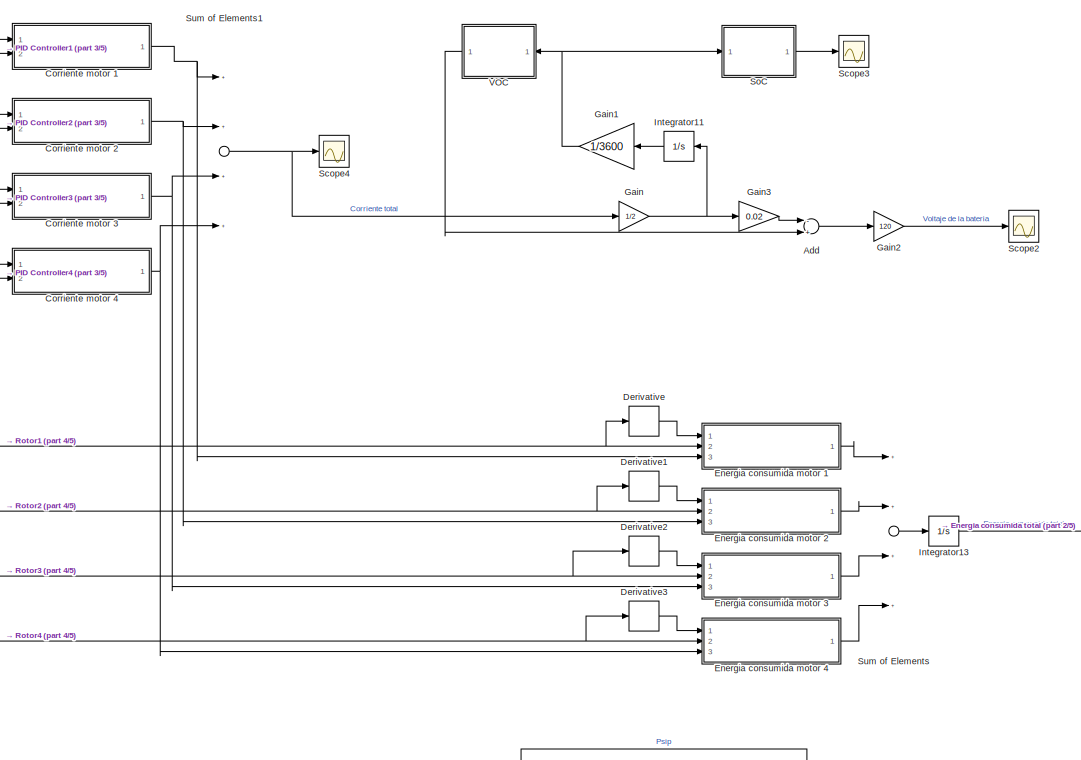
[diagram: root canvas - part 1/5, top center region]
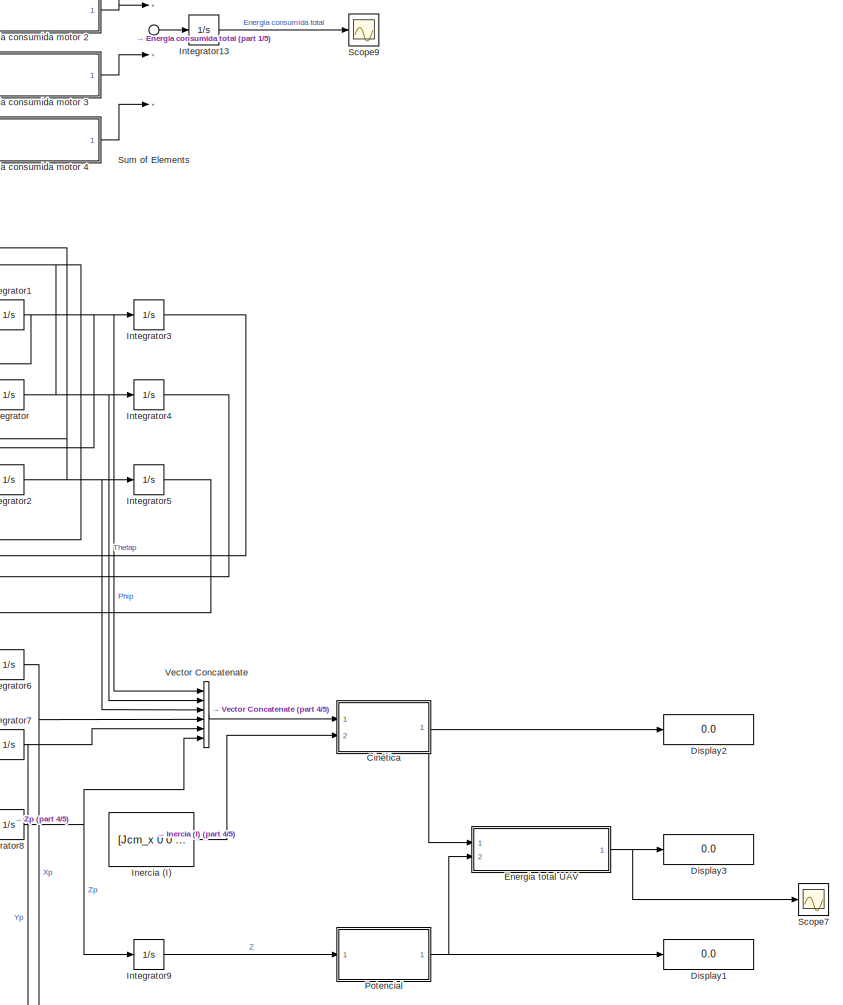
[diagram: root canvas - part 2/5, middle right region]
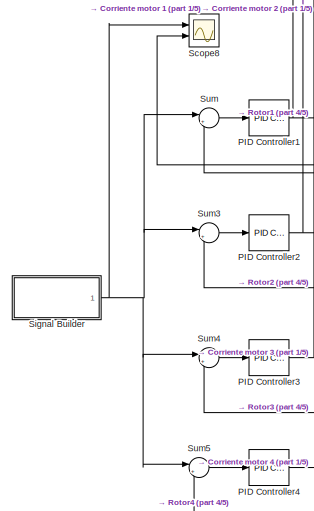
[diagram: root canvas - part 3/5, middle left region]
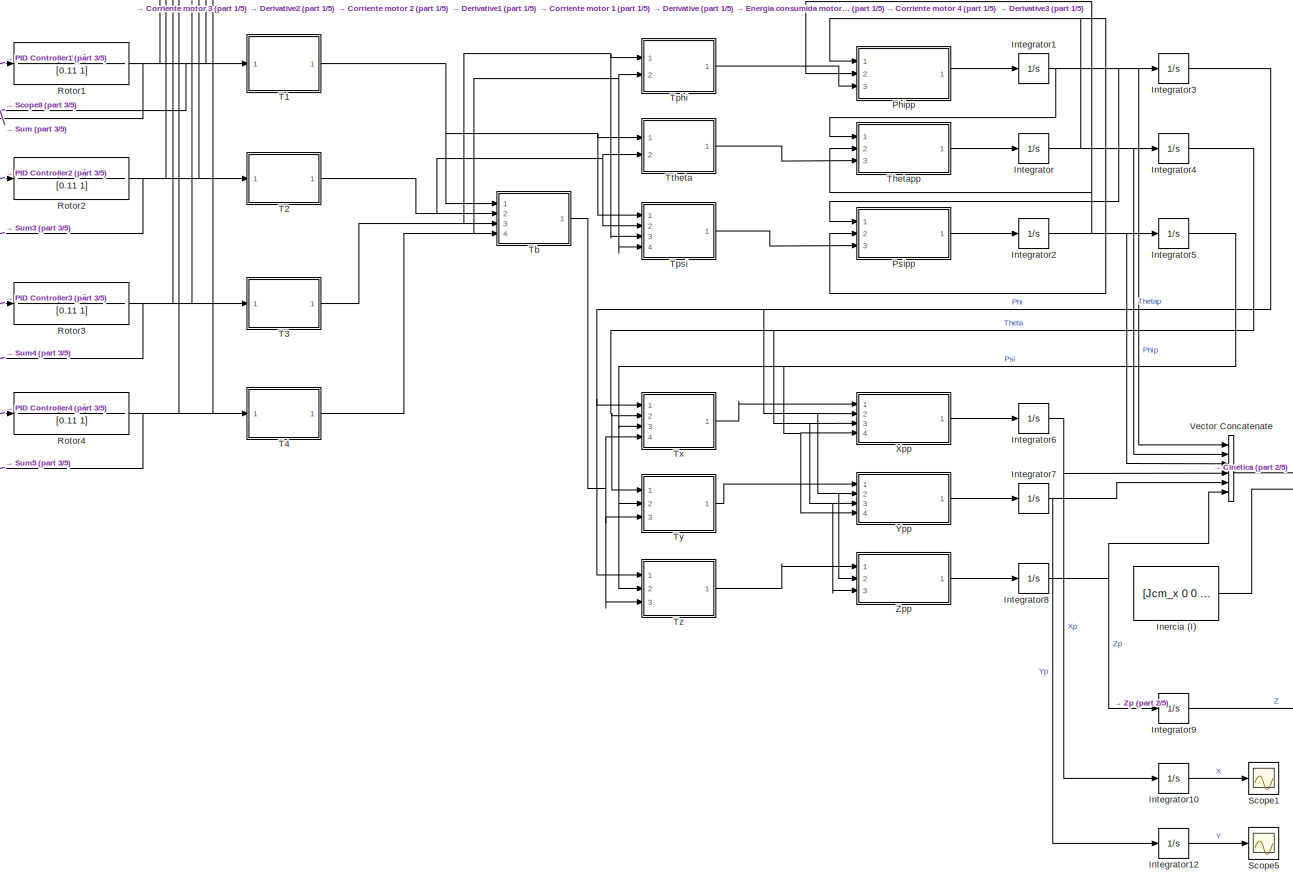
[diagram: root canvas - part 4/5, central region]
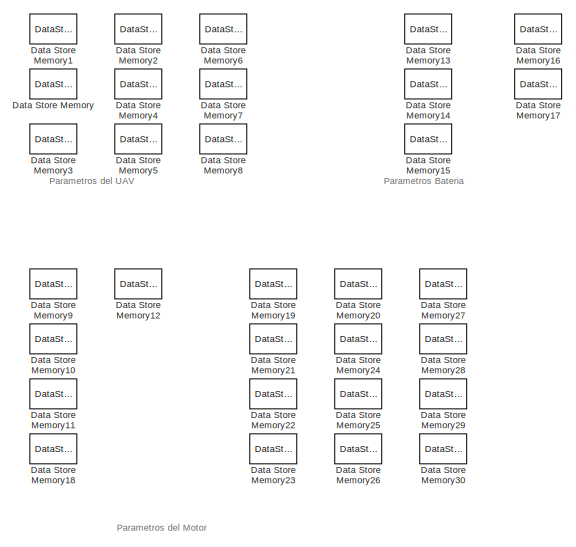
[diagram: root canvas - part 5/5, bottom left region]
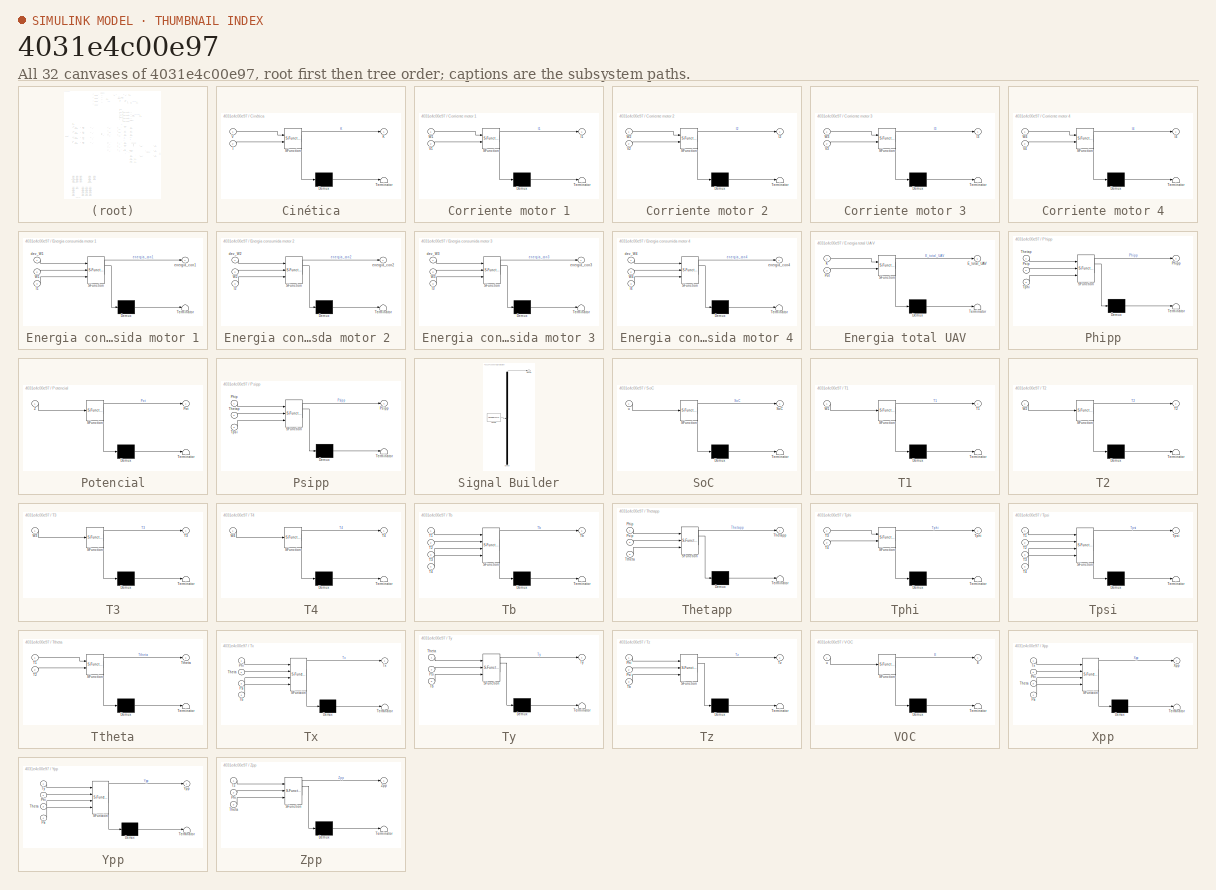
[diagram: thumbnail index - all 32 canvases of the model, root first then tree order]
MODEL slx_4031e4c00e97
KIND model
CONFIG AbsTol = auto
CONFIG EnableMultiTasking = off
CONFIG FixedStep = 1/10000
CONFIG MaxStep = auto
CONFIG MinStep = auto
CONFIG RelTol = 1e-3
CONFIG SampleTimeConstraint = Unconstrained
CONFIG Solver = FixedStepAuto
CONFIG SolverName = FixedStepAuto
CONFIG StartTime = 0.0
CONFIG StopTime = 6
BLOCK [Sum] Add
  InputSameDT = off
  Inputs = -+
  OutDataTypeStr = Inherit: Inherit via internal rule
  Ports = [2, 1]
  SaturateOnIntegerOverflow = off
BLOCK [SubSystem] Cinética
  ErrorFcn = Stateflow.Translate.translate
  PermitHierarchicalResolution = ExplicitOnly
  Ports = [2, 1]
  RequestExecContextInheritance = off
  SFBlockType = MATLAB Function
  TreatAsAtomicUnit = on
  Variant = off
BLOCK [Demux] Cinética/ Demux 
  Outputs = 1
  Ports = [1, 1]
BLOCK [S-Function] Cinética/ SFunction 
  EnableBusSupport = on
  FunctionName = sf_sfun
  PortCounts = [2 2]
  Ports = [2, 2]
  SFcnIsStateOwnerBlock = off
  SFunctionDeploymentMode = off
  Tag = Stateflow S-Function UAV_corregido 18
BLOCK [Terminator] Cinética/ Terminator 
BLOCK [Inport] Cinética/I
  IconDisplay = Port number
  Port = 2
BLOCK [Outport] Cinética/K
  IconDisplay = Port number
BLOCK [Inport] Cinética/V
  IconDisplay = Port number
BLOCK [SubSystem] Corriente motor 1
  ErrorFcn = Stateflow.Translate.translate
  PermitHierarchicalResolution = ExplicitOnly
  Ports = [2, 1]
  RequestExecContextInheritance = off
  SFBlockType = MATLAB Function
  TreatAsAtomicUnit = on
  Variant = off
BLOCK [Demux] Corriente motor 1/ Demux 
  Outputs = 1
  Ports = [1, 1]
BLOCK [S-Function] Corriente motor 1/ SFunction 
  EnableBusSupport = on
  FunctionName = sf_sfun
  PortCounts = [2 2]
  Ports = [2, 2]
  SFcnIsStateOwnerBlock = off
  SFunctionDeploymentMode = off
  Tag = Stateflow S-Function UAV_corregido 23
BLOCK [Terminator] Corriente motor 1/ Terminator 
BLOCK [Outport] Corriente motor 1/I1
  IconDisplay = Port number
BLOCK [Inport] Corriente motor 1/V1
  IconDisplay = Port number
  Port = 2
BLOCK [Inport] Corriente motor 1/W1
  IconDisplay = Port number
BLOCK [SubSystem] Corriente motor 2
  ErrorFcn = Stateflow.Translate.translate
  PermitHierarchicalResolution = ExplicitOnly
  Ports = [2, 1]
  RequestExecContextInheritance = off
  SFBlockType = MATLAB Function
  TreatAsAtomicUnit = on
  Variant = off
BLOCK [Demux] Corriente motor 2/ Demux 
  Outputs = 1
  Ports = [1, 1]
BLOCK [S-Function] Corriente motor 2/ SFunction 
  EnableBusSupport = on
  FunctionName = sf_sfun
  PortCounts = [2 2]
  Ports = [2, 2]
  SFcnIsStateOwnerBlock = off
  SFunctionDeploymentMode = off
  Tag = Stateflow S-Function UAV_corregido 24
BLOCK [Terminator] Corriente motor 2/ Terminator 
BLOCK [Outport] Corriente motor 2/I2
  IconDisplay = Port number
BLOCK [Inport] Corriente motor 2/V2
  IconDisplay = Port number
  Port = 2
BLOCK [Inport] Corriente motor 2/W2
  IconDisplay = Port number
BLOCK [SubSystem] Corriente motor 3
  ErrorFcn = Stateflow.Translate.translate
  PermitHierarchicalResolution = ExplicitOnly
  Ports = [2, 1]
  RequestExecContextInheritance = off
  SFBlockType = MATLAB Function
  TreatAsAtomicUnit = on
  Variant = off
BLOCK [Demux] Corriente motor 3/ Demux 
  Outputs = 1
  Ports = [1, 1]
BLOCK [S-Function] Corriente motor 3/ SFunction 
  EnableBusSupport = on
  FunctionName = sf_sfun
  PortCounts = [2 2]
  Ports = [2, 2]
  SFcnIsStateOwnerBlock = off
  SFunctionDeploymentMode = off
  Tag = Stateflow S-Function UAV_corregido 25
BLOCK [Terminator] Corriente motor 3/ Terminator 
BLOCK [Outport] Corriente motor 3/I3
  IconDisplay = Port number
BLOCK [Inport] Corriente motor 3/V3
  IconDisplay = Port number
  Port = 2
BLOCK [Inport] Corriente motor 3/W3
  IconDisplay = Port number
BLOCK [SubSystem] Corriente motor 4
  ErrorFcn = Stateflow.Translate.translate
  PermitHierarchicalResolution = ExplicitOnly
  Ports = [2, 1]
  RequestExecContextInheritance = off
  SFBlockType = MATLAB Function
  TreatAsAtomicUnit = on
  Variant = off
BLOCK [Demux] Corriente motor 4/ Demux 
  Outputs = 1
  Ports = [1, 1]
BLOCK [S-Function] Corriente motor 4/ SFunction 
  EnableBusSupport = on
  FunctionName = sf_sfun
  PortCounts = [2 2]
  Ports = [2, 2]
  SFcnIsStateOwnerBlock = off
  SFunctionDeploymentMode = off
  Tag = Stateflow S-Function UAV_corregido 26
BLOCK [Terminator] Corriente motor 4/ Terminator 
BLOCK [Outport] Corriente motor 4/I4
  IconDisplay = Port number
BLOCK [Inport] Corriente motor 4/V4
  IconDisplay = Port number
  Port = 2
BLOCK [Inport] Corriente motor 4/W4
  IconDisplay = Port number
BLOCK [DataStoreMemory] Data Store Memory
  DataStoreName = P_airs
  InitialValue = P_air
  LockScale = on
  OutDataTypeStr = double
  ReadBeforeWriteMsg = warning
  ShowAdditionalParam = off
  SignalType = real
  WriteAfterReadMsg = warning
  WriteAfterWriteMsg = warning
BLOCK [DataStoreMemory] Data Store Memory1
  DataStoreName = M_ts
  InitialValue = M_t
  LockScale = on
  OutDataTypeStr = double
  ReadBeforeWriteMsg = warning
  ShowAdditionalParam = off
  SignalType = real
  WriteAfterReadMsg = warning
  WriteAfterWriteMsg = warning
BLOCK [DataStoreMemory] Data Store Memory10
  DataStoreName = Kvs
  InitialValue = Kv
  LockScale = on
  OutDataTypeStr = double
  ReadBeforeWriteMsg = warning
  ShowAdditionalParam = off
  SignalType = real
  WriteAfterReadMsg = warning
  WriteAfterWriteMsg = warning
BLOCK [DataStoreMemory] Data Store Memory11
  DataStoreName = Dvs
  InitialValue = Dv
  LockScale = on
  OutDataTypeStr = double
  ReadBeforeWriteMsg = warning
  ShowAdditionalParam = off
  SignalType = real
  WriteAfterReadMsg = warning
  WriteAfterWriteMsg = warning
BLOCK [DataStoreMemory] Data Store Memory12
  DataStoreName = Rs
  InitialValue = R
  LockScale = on
  OutDataTypeStr = double
  ReadBeforeWriteMsg = warning
  ShowAdditionalParam = off
  SignalType = real
  WriteAfterReadMsg = warning
  WriteAfterWriteMsg = warning
BLOCK [DataStoreMemory] Data Store Memory13
  DataStoreName = E0s
  InitialValue = E0
  LockScale = on
  OutDataTypeStr = double
  ReadBeforeWriteMsg = warning
  ShowAdditionalParam = off
  SignalType = real
  WriteAfterReadMsg = warning
  WriteAfterWriteMsg = warning
BLOCK [DataStoreMemory] Data Store Memory14
  DataStoreName = Ks
  InitialValue = K
  LockScale = on
  OutDataTypeStr = double
  ReadBeforeWriteMsg = warning
  ShowAdditionalParam = off
  SignalType = real
  WriteAfterReadMsg = warning
  WriteAfterWriteMsg = warning
BLOCK [DataStoreMemory] Data Store Memory15
  DataStoreName = Abs
  InitialValue = Ab
  LockScale = on
  OutDataTypeStr = double
  ReadBeforeWriteMsg = warning
  ShowAdditionalParam = off
  SignalType = real
  WriteAfterReadMsg = warning
  WriteAfterWriteMsg = warning
BLOCK [DataStoreMemory] Data Store Memory16
  DataStoreName = Qs
  InitialValue = Q
  LockScale = on
  OutDataTypeStr = double
  ReadBeforeWriteMsg = warning
  ShowAdditionalParam = off
  SignalType = real
  WriteAfterReadMsg = warning
  WriteAfterWriteMsg = warning
BLOCK [DataStoreMemory] Data Store Memory17
  DataStoreName = Bs
  InitialValue = B
  LockScale = on
  OutDataTypeStr = double
  ReadBeforeWriteMsg = warning
  ShowAdditionalParam = off
  SignalType = real
  WriteAfterReadMsg = warning
  WriteAfterWriteMsg = warning
BLOCK [DataStoreMemory] Data Store Memory18
  DataStoreName = Kts
  InitialValue = Kt
  LockScale = on
  OutDataTypeStr = double
  ReadBeforeWriteMsg = warning
  ShowAdditionalParam = off
  SignalType = real
  WriteAfterReadMsg = warning
  WriteAfterWriteMsg = warning
BLOCK [DataStoreMemory] Data Store Memory19
  DataStoreName = a1s
  InitialValue = a1
  LockScale = on
  OutDataTypeStr = double
  ReadBeforeWriteMsg = warning
  ShowAdditionalParam = off
  SignalType = real
  WriteAfterReadMsg = warning
  WriteAfterWriteMsg = warning
BLOCK [DataStoreMemory] Data Store Memory2
  DataStoreName = C_ds
  InitialValue = C_d
  LockScale = on
  OutDataTypeStr = double
  ReadBeforeWriteMsg = warning
  ShowAdditionalParam = off
  SignalType = real
  WriteAfterReadMsg = warning
  WriteAfterWriteMsg = warning
BLOCK [DataStoreMemory] Data Store Memory20
  DataStoreName = b1s
  InitialValue = b1
  LockScale = on
  OutDataTypeStr = double
  ReadBeforeWriteMsg = warning
  ShowAdditionalParam = off
  SignalType = real
  WriteAfterReadMsg = warning
  WriteAfterWriteMsg = warning
BLOCK [DataStoreMemory] Data Store Memory21
  DataStoreName = a2s
  InitialValue = a2
  LockScale = on
  OutDataTypeStr = double
  ReadBeforeWriteMsg = warning
  ShowAdditionalParam = off
  SignalType = real
  WriteAfterReadMsg = warning
  WriteAfterWriteMsg = warning
BLOCK [DataStoreMemory] Data Store Memory22
  DataStoreName = a3s
  InitialValue = a3
  LockScale = on
  OutDataTypeStr = double
  ReadBeforeWriteMsg = warning
  ShowAdditionalParam = off
  SignalType = real
  WriteAfterReadMsg = warning
  WriteAfterWriteMsg = warning
BLOCK [DataStoreMemory] Data Store Memory23
  DataStoreName = a4s
  InitialValue = a4
  LockScale = on
  OutDataTypeStr = double
  ReadBeforeWriteMsg = warning
  ShowAdditionalParam = off
  SignalType = real
  WriteAfterReadMsg = warning
  WriteAfterWriteMsg = warning
BLOCK [DataStoreMemory] Data Store Memory24
  DataStoreName = b2s
  InitialValue = b2
  LockScale = on
  OutDataTypeStr = double
  ReadBeforeWriteMsg = warning
  ShowAdditionalParam = off
  SignalType = real
  WriteAfterReadMsg = warning
  WriteAfterWriteMsg = warning
BLOCK [DataStoreMemory] Data Store Memory25
  DataStoreName = b3s
  InitialValue = b3
  LockScale = on
  OutDataTypeStr = double
  ReadBeforeWriteMsg = warning
  ShowAdditionalParam = off
  SignalType = real
  WriteAfterReadMsg = warning
  WriteAfterWriteMsg = warning
BLOCK [DataStoreMemory] Data Store Memory26
  DataStoreName = b4s
  InitialValue = b4
  LockScale = on
  OutDataTypeStr = double
  ReadBeforeWriteMsg = warning
  ShowAdditionalParam = off
  SignalType = real
  WriteAfterReadMsg = warning
  WriteAfterWriteMsg = warning
BLOCK [DataStoreMemory] Data Store Memory27
  DataStoreName = c1s
  InitialValue = c1
  LockScale = on
  OutDataTypeStr = double
  ReadBeforeWriteMsg = warning
  ShowAdditionalParam = off
  SignalType = real
  WriteAfterReadMsg = warning
  WriteAfterWriteMsg = warning
BLOCK [DataStoreMemory] Data Store Memory28
  DataStoreName = c2s
  InitialValue = c2
  LockScale = on
  OutDataTypeStr = double
  ReadBeforeWriteMsg = warning
  ShowAdditionalParam = off
  SignalType = real
  WriteAfterReadMsg = warning
  WriteAfterWriteMsg = warning
BLOCK [DataStoreMemory] Data Store Memory29
  DataStoreName = c3s
  InitialValue = c3
  LockScale = on
  OutDataTypeStr = double
  ReadBeforeWriteMsg = warning
  ShowAdditionalParam = off
  SignalType = real
  WriteAfterReadMsg = warning
  WriteAfterWriteMsg = warning
BLOCK [DataStoreMemory] Data Store Memory3
  DataStoreName = C_ls
  InitialValue = C_l
  LockScale = on
  OutDataTypeStr = double
  ReadBeforeWriteMsg = warning
  ShowAdditionalParam = off
  SignalType = real
  WriteAfterReadMsg = warning
  WriteAfterWriteMsg = warning
BLOCK [DataStoreMemory] Data Store Memory30
  DataStoreName = c4s
  InitialValue = c4
  LockScale = on
  OutDataTypeStr = double
  ReadBeforeWriteMsg = warning
  ShowAdditionalParam = off
  SignalType = real
  WriteAfterReadMsg = warning
  WriteAfterWriteMsg = warning
BLOCK [DataStoreMemory] Data Store Memory4
  DataStoreName = Jcm_xs
  InitialValue = Jcm_x
  LockScale = on
  OutDataTypeStr = double
  ReadBeforeWriteMsg = warning
  ShowAdditionalParam = off
  SignalType = real
  WriteAfterReadMsg = warning
  WriteAfterWriteMsg = warning
BLOCK [DataStoreMemory] Data Store Memory5
  DataStoreName = Jcm_ys
  InitialValue = Jcm_y
  LockScale = on
  OutDataTypeStr = double
  ReadBeforeWriteMsg = warning
  ShowAdditionalParam = off
  SignalType = real
  WriteAfterReadMsg = warning
  WriteAfterWriteMsg = warning
BLOCK [DataStoreMemory] Data Store Memory6
  DataStoreName = Jcm_zs
  InitialValue = Jcm_z
  LockScale = on
  OutDataTypeStr = double
  ReadBeforeWriteMsg = warning
  ShowAdditionalParam = off
  SignalType = real
  WriteAfterReadMsg = warning
  WriteAfterWriteMsg = warning
BLOCK [DataStoreMemory] Data Store Memory7
  DataStoreName = gs
  InitialValue = g
  LockScale = on
  OutDataTypeStr = double
  ReadBeforeWriteMsg = warning
  ShowAdditionalParam = off
  SignalType = real
  WriteAfterReadMsg = warning
  WriteAfterWriteMsg = warning
BLOCK [DataStoreMemory] Data Store Memory8
  DataStoreName = As
  InitialValue = A
  LockScale = on
  OutDataTypeStr = double
  ReadBeforeWriteMsg = warning
  ShowAdditionalParam = off
  SignalType = real
  WriteAfterReadMsg = warning
  WriteAfterWriteMsg = warning
BLOCK [DataStoreMemory] Data Store Memory9
  DataStoreName = Js
  InitialValue = J
  LockScale = on
  OutDataTypeStr = double
  ReadBeforeWriteMsg = warning
  ShowAdditionalParam = off
  SignalType = real
  WriteAfterReadMsg = warning
  WriteAfterWriteMsg = warning
BLOCK [Derivative] Derivative
BLOCK [Derivative] Derivative1
BLOCK [Derivative] Derivative2
BLOCK [Derivative] Derivative3
BLOCK [Display] Display1
  Decimation = 1
  Ports = [1]
BLOCK [Display] Display2
  Decimation = 1
  Ports = [1]
BLOCK [Display] Display3
  Decimation = 1
  Ports = [1]
BLOCK [SubSystem] Energia consumida motor 1
  ErrorFcn = Stateflow.Translate.translate
  PermitHierarchicalResolution = ExplicitOnly
  Ports = [3, 1]
  RequestExecContextInheritance = off
  SFBlockType = MATLAB Function
  TreatAsAtomicUnit = on
  Variant = off
BLOCK [Demux] Energia consumida motor 1/ Demux 
  Outputs = 1
  Ports = [1, 1]
BLOCK [S-Function] Energia consumida motor 1/ SFunction 
  EnableBusSupport = on
  FunctionName = sf_sfun
  PortCounts = [3 2]
  Ports = [3, 2]
  SFcnIsStateOwnerBlock = off
  SFunctionDeploymentMode = off
  Tag = Stateflow S-Function UAV_corregido 27
BLOCK [Terminator] Energia consumida motor 1/ Terminator 
BLOCK [Inport] Energia consumida motor 1/I1
  IconDisplay = Port number
  Port = 3
BLOCK [Inport] Energia consumida motor 1/W1
  IconDisplay = Port number
  Port = 2
BLOCK [Inport] Energia consumida motor 1/dev_W1
  IconDisplay = Port number
BLOCK [Outport] Energia consumida motor 1/energia_con1
  IconDisplay = Port number
BLOCK [SubSystem] Energia consumida motor 2 
  ErrorFcn = Stateflow.Translate.translate
  PermitHierarchicalResolution = ExplicitOnly
  Ports = [3, 1]
  RequestExecContextInheritance = off
  SFBlockType = MATLAB Function
  TreatAsAtomicUnit = on
  Variant = off
BLOCK [Demux] Energia consumida motor 2 / Demux 
  Outputs = 1
  Ports = [1, 1]
BLOCK [S-Function] Energia consumida motor 2 / SFunction 
  EnableBusSupport = on
  FunctionName = sf_sfun
  PortCounts = [3 2]
  Ports = [3, 2]
  SFcnIsStateOwnerBlock = off
  SFunctionDeploymentMode = off
  Tag = Stateflow S-Function UAV_corregido 28
BLOCK [Terminator] Energia consumida motor 2 / Terminator 
BLOCK [Inport] Energia consumida motor 2 /I2
  IconDisplay = Port number
  Port = 3
BLOCK [Inport] Energia consumida motor 2 /W2
  IconDisplay = Port number
  Port = 2
BLOCK [Inport] Energia consumida motor 2 /dev_W2
  IconDisplay = Port number
BLOCK [Outport] Energia consumida motor 2 /energia_con2
  IconDisplay = Port number
BLOCK [SubSystem] Energia consumida motor 3
  ErrorFcn = Stateflow.Translate.translate
  PermitHierarchicalResolution = ExplicitOnly
  Ports = [3, 1]
  RequestExecContextInheritance = off
  SFBlockType = MATLAB Function
  TreatAsAtomicUnit = on
  Variant = off
BLOCK [Demux] Energia consumida motor 3/ Demux 
  Outputs = 1
  Ports = [1, 1]
BLOCK [S-Function] Energia consumida motor 3/ SFunction 
  EnableBusSupport = on
  FunctionName = sf_sfun
  PortCounts = [3 2]
  Ports = [3, 2]
  SFcnIsStateOwnerBlock = off
  SFunctionDeploymentMode = off
  Tag = Stateflow S-Function UAV_corregido 29
BLOCK [Terminator] Energia consumida motor 3/ Terminator 
BLOCK [Inport] Energia consumida motor 3/I3
  IconDisplay = Port number
  Port = 3
BLOCK [Inport] Energia consumida motor 3/W3
  IconDisplay = Port number
  Port = 2
BLOCK [Inport] Energia consumida motor 3/dev_W3
  IconDisplay = Port number
BLOCK [Outport] Energia consumida motor 3/energia_con3
  IconDisplay = Port number
BLOCK [SubSystem] Energia consumida motor 4
  ErrorFcn = Stateflow.Translate.translate
  PermitHierarchicalResolution = ExplicitOnly
  Ports = [3, 1]
  RequestExecContextInheritance = off
  SFBlockType = MATLAB Function
  TreatAsAtomicUnit = on
  Variant = off
BLOCK [Demux] Energia consumida motor 4/ Demux 
  Outputs = 1
  Ports = [1, 1]
BLOCK [S-Function] Energia consumida motor 4/ SFunction 
  EnableBusSupport = on
  FunctionName = sf_sfun
  PortCounts = [3 2]
  Ports = [3, 2]
  SFcnIsStateOwnerBlock = off
  SFunctionDeploymentMode = off
  Tag = Stateflow S-Function UAV_corregido 30
BLOCK [Terminator] Energia consumida motor 4/ Terminator 
BLOCK [Inport] Energia consumida motor 4/I4
  IconDisplay = Port number
  Port = 3
BLOCK [Inport] Energia consumida motor 4/W4
  IconDisplay = Port number
  Port = 2
BLOCK [Inport] Energia consumida motor 4/dev_W4
  IconDisplay = Port number
BLOCK [Outport] Energia consumida motor 4/energia_con4
  IconDisplay = Port number
BLOCK [SubSystem] Energia total UAV
  ErrorFcn = Stateflow.Translate.translate
  PermitHierarchicalResolution = ExplicitOnly
  Ports = [2, 1]
  RequestExecContextInheritance = off
  SFBlockType = MATLAB Function
  TreatAsAtomicUnit = on
  Variant = off
BLOCK [Demux] Energia total UAV/ Demux 
  Outputs = 1
  Ports = [1, 1]
BLOCK [S-Function] Energia total UAV/ SFunction 
  EnableBusSupport = on
  FunctionName = sf_sfun
  PortCounts = [2 2]
  Ports = [2, 2]
  SFcnIsStateOwnerBlock = off
  SFunctionDeploymentMode = off
  Tag = Stateflow S-Function UAV_corregido 20
BLOCK [Terminator] Energia total UAV/ Terminator 
BLOCK [Outport] Energia total UAV/E_total_UAV
  IconDisplay = Port number
BLOCK [Inport] Energia total UAV/K
  IconDisplay = Port number
BLOCK [Inport] Energia total UAV/Pot
  IconDisplay = Port number
  Port = 2
BLOCK [Gain] Gain
  Gain = 1/2
  OutDataTypeStr = Inherit: Inherit via internal rule
  ParamDataTypeStr = Inherit: Inherit via internal rule
  SaturateOnIntegerOverflow = off
BLOCK [Gain] Gain1
  Gain = 1/3600
  OutDataTypeStr = Inherit: Inherit via internal rule
  ParamDataTypeStr = Inherit: Inherit via internal rule
  SaturateOnIntegerOverflow = off
BLOCK [Gain] Gain2
  Gain = 120
  OutDataTypeStr = Inherit: Inherit via internal rule
  ParamDataTypeStr = Inherit: Inherit via internal rule
  SaturateOnIntegerOverflow = off
BLOCK [Gain] Gain3
  Gain = 0.02
  OutDataTypeStr = Inherit: Inherit via internal rule
  ParamDataTypeStr = Inherit: Inherit via internal rule
  SaturateOnIntegerOverflow = off
BLOCK [Constant] Inercia (I)
  Value = [Jcm_x 0 0 0 0 0; 0 Jcm_y 0 0 0 0; 0 0 Jcm_z 0 0 0; 0 0 0 M_t 0 0; 0 0 0 0 0 M_t; 0 0 0 0 0 M_t]
BLOCK [Integrator] Integrator
  Ports = [1, 1]
BLOCK [Integrator] Integrator1
  Ports = [1, 1]
BLOCK [Integrator] Integrator10
  Ports = [1, 1]
BLOCK [Integrator] Integrator11
  Ports = [1, 1]
BLOCK [Integrator] Integrator12
  Ports = [1, 1]
BLOCK [Integrator] Integrator13
  LowerSaturationLimit = 0
  Ports = [1, 1]
  UpperSaturationLimit = 6
BLOCK [Integrator] Integrator2
  Ports = [1, 1]
BLOCK [Integrator] Integrator3
  Ports = [1, 1]
BLOCK [Integrator] Integrator4
  Ports = [1, 1]
BLOCK [Integrator] Integrator5
  Ports = [1, 1]
BLOCK [Integrator] Integrator6
  Ports = [1, 1]
BLOCK [Integrator] Integrator7
  Ports = [1, 1]
BLOCK [Integrator] Integrator8
  Ports = [1, 1]
BLOCK [Integrator] Integrator9
  Ports = [1, 1]
BLOCK [Reference] PID Controller1  REF=simulink/Continuous/PID Controller
  Ports = [1, 1]
  SourceBlock = simulink/Continuous/PID Controller
  SourceProductBaseCode = SL
  SourceProductName = Simulink
  SourceType = PID 1dof
BLOCK [Reference] PID Controller2  REF=simulink/Continuous/PID Controller
  Ports = [1, 1]
  SourceBlock = simulink/Continuous/PID Controller
  SourceProductBaseCode = SL
  SourceProductName = Simulink
  SourceType = PID 1dof
BLOCK [Reference] PID Controller3  REF=simulink/Continuous/PID Controller
  Ports = [1, 1]
  SourceBlock = simulink/Continuous/PID Controller
  SourceProductBaseCode = SL
  SourceProductName = Simulink
  SourceType = PID 1dof
BLOCK [Reference] PID Controller4  REF=simulink/Continuous/PID Controller
  Ports = [1, 1]
  SourceBlock = simulink/Continuous/PID Controller
  SourceProductBaseCode = SL
  SourceProductName = Simulink
  SourceType = PID 1dof
BLOCK [SubSystem] Phipp
  ErrorFcn = Stateflow.Translate.translate
  PermitHierarchicalResolution = ExplicitOnly
  Ports = [3, 1]
  RequestExecContextInheritance = off
  SFBlockType = MATLAB Function
  TreatAsAtomicUnit = on
  Variant = off
BLOCK [Demux] Phipp/ Demux 
  Outputs = 1
  Ports = [1, 1]
BLOCK [S-Function] Phipp/ SFunction 
  EnableBusSupport = on
  FunctionName = sf_sfun
  PortCounts = [3 2]
  Ports = [3, 2]
  SFcnIsStateOwnerBlock = off
  SFunctionDeploymentMode = off
  Tag = Stateflow S-Function UAV_corregido 9
BLOCK [Terminator] Phipp/ Terminator 
BLOCK [Outport] Phipp/Phipp
  IconDisplay = Port number
BLOCK [Inport] Phipp/Psip
  IconDisplay = Port number
  Port = 2
BLOCK [Inport] Phipp/Thetap
  IconDisplay = Port number
BLOCK [Inport] Phipp/Tphi
  IconDisplay = Port number
  Port = 3
BLOCK [SubSystem] Potencial
  ErrorFcn = Stateflow.Translate.translate
  PermitHierarchicalResolution = ExplicitOnly
  Ports = [1, 1]
  RequestExecContextInheritance = off
  SFBlockType = MATLAB Function
  TreatAsAtomicUnit = on
  Variant = off
BLOCK [Demux] Potencial/ Demux 
  Outputs = 1
  Ports = [1, 1]
BLOCK [S-Function] Potencial/ SFunction 
  EnableBusSupport = on
  FunctionName = sf_sfun
  PortCounts = [1 2]
  Ports = [1, 2]
  SFcnIsStateOwnerBlock = off
  SFunctionDeploymentMode = off
  Tag = Stateflow S-Function UAV_corregido 19
BLOCK [Terminator] Potencial/ Terminator 
BLOCK [Outport] Potencial/Pot
  IconDisplay = Port number
BLOCK [Inport] Potencial/Z
  IconDisplay = Port number
BLOCK [SubSystem] Psipp
  ErrorFcn = Stateflow.Translate.translate
  PermitHierarchicalResolution = ExplicitOnly
  Ports = [3, 1]
  RequestExecContextInheritance = off
  SFBlockType = MATLAB Function
  TreatAsAtomicUnit = on
  Variant = off
BLOCK [Demux] Psipp/ Demux 
  Outputs = 1
  Ports = [1, 1]
BLOCK [S-Function] Psipp/ SFunction 
  EnableBusSupport = on
  FunctionName = sf_sfun
  PortCounts = [3 2]
  Ports = [3, 2]
  SFcnIsStateOwnerBlock = off
  SFunctionDeploymentMode = off
  Tag = Stateflow S-Function UAV_corregido 11
BLOCK [Terminator] Psipp/ Terminator 
BLOCK [Inport] Psipp/Phip
  IconDisplay = Port number
BLOCK [Outport] Psipp/Psipp
  IconDisplay = Port number
BLOCK [Inport] Psipp/Thetap
  IconDisplay = Port number
  Port = 2
BLOCK [Inport] Psipp/Tpsi
  IconDisplay = Port number
  Port = 3
BLOCK [TransferFcn] Rotor1
  Denominator = [0.11 1]
  Numerator = [0.749]
BLOCK [TransferFcn] Rotor2
  Denominator = [0.11 1]
  Numerator = [0.749]
BLOCK [TransferFcn] Rotor3
  Denominator = [0.11 1]
  Numerator = [0.749]
BLOCK [TransferFcn] Rotor4
  Denominator = [0.11 1]
  Numerator = [0.749]
BLOCK [Scope] Scope1
  NumInputPorts = 1
  Ports = [1]
  ScopeSpecificationString = Simulink.scopes.TimeScopeBlockCfg('CurrentConfiguration', extmgr.ConfigurationSet(extmgr.Configuration('Core','General UI',true),extmgr.Configuration('Core','Source UI',true),extmgr.Configuration('Sources','WiredSimulink',true,'DataLoggingVariableName','ScopeData1'),extmgr.Configuration('Visuals','Time Domain',true,'SerializedDisplays',{struct('MinYLimReal','-1.00000','MaxYLimReal','1.00000','YLab...<+1360ch>
BLOCK [Scope] Scope2
  NumInputPorts = 1
  Ports = [1]
  ScopeSpecificationString = Simulink.scopes.TimeScopeBlockCfg('CurrentConfiguration', extmgr.ConfigurationSet(extmgr.Configuration('Core','General UI',true),extmgr.Configuration('Core','Source UI',true),extmgr.Configuration('Sources','WiredSimulink',true,'DataLoggingVariableName','ScopeData1'),extmgr.Configuration('Visuals','Time Domain',true,'SerializedDisplays',{struct('MinYLimReal','147.90354','MaxYLimReal','148.62999','Y...<+1443ch>
BLOCK [Scope] Scope3
  NumInputPorts = 1
  Ports = [1]
  ScopeSpecificationString = Simulink.scopes.TimeScopeBlockCfg('CurrentConfiguration', extmgr.ConfigurationSet(extmgr.Configuration('Core','General UI',true),extmgr.Configuration('Core','Source UI',true),extmgr.Configuration('Sources','WiredSimulink',true,'DataLoggingVariableName','ScopeData2'),extmgr.Configuration('Visuals','Time Domain',true,'SerializedDisplays',{struct('MinYLimReal','99.00027','MaxYLimReal','100.11108','YL...<+1419ch>
BLOCK [Scope] Scope4
  NumInputPorts = 1
  Ports = [1]
  ScopeSpecificationString = Simulink.scopes.TimeScopeBlockCfg('CurrentConfiguration', extmgr.ConfigurationSet(extmgr.Configuration('Core','General UI',true),extmgr.Configuration('Core','Source UI',true),extmgr.Configuration('Sources','WiredSimulink',true,'DataLoggingVariableName','ScopeData1'),extmgr.Configuration('Visuals','Time Domain',true,'SerializedDisplays',{struct('MinYLimReal','-49491.95212','MaxYLimReal','197862.137...<+1504ch>
BLOCK [Scope] Scope5
  NumInputPorts = 1
  Ports = [1]
  ScopeSpecificationString = Simulink.scopes.TimeScopeBlockCfg('CurrentConfiguration', extmgr.ConfigurationSet(extmgr.Configuration('Core','General UI',true),extmgr.Configuration('Core','Source UI',true),extmgr.Configuration('Sources','WiredSimulink',true,'DataLoggingVariableName','ScopeData4'),extmgr.Configuration('Visuals','Time Domain',true,'SerializedDisplays',{struct('MinYLimReal','-1.00000','MaxYLimReal','1.00000','YLab...<+1360ch>
BLOCK [Scope] Scope7
  NumInputPorts = 1
  Ports = [1]
  ScopeSpecificationString = Simulink.scopes.TimeScopeBlockCfg('CurrentConfiguration', extmgr.ConfigurationSet(extmgr.Configuration('Core','General UI',true),extmgr.Configuration('Core','Source UI',true),extmgr.Configuration('Sources','WiredSimulink',true,'DataLoggingVariableName','ScopeData1'),extmgr.Configuration('Visuals','Time Domain',true,'SerializedDisplays',{struct('MinYLimReal','-264167289816405.1875','MaxYLimReal','2...<+1588ch>
BLOCK [Scope] Scope8
  NumInputPorts = 2
  Ports = [2]
  ScopeSpecificationString = Simulink.scopes.TimeScopeBlockCfg('CurrentConfiguration', extmgr.ConfigurationSet(extmgr.Configuration('Core','General UI',true),extmgr.Configuration('Core','Source UI',true),extmgr.Configuration('Sources','WiredSimulink',true,'DataLoggingVariableName','ScopeData1'),extmgr.Configuration('Visuals','Time Domain',true,'SerializedDisplays',{struct('MinYLimReal','-741.99251','MaxYLimReal','6372.87024',...<+1446ch>
BLOCK [Scope] Scope9
  NumInputPorts = 1
  Ports = [1]
  ScopeSpecificationString = Simulink.scopes.TimeScopeBlockCfg('CurrentConfiguration', extmgr.ConfigurationSet(extmgr.Configuration('Core','General UI',true),extmgr.Configuration('Core','Source UI',true),extmgr.Configuration('Sources','WiredSimulink',true,'DataLoggingVariableName','ScopeData8'),extmgr.Configuration('Visuals','Time Domain',true,'SerializedDisplays',{struct('MinYLimReal','-29.53271','MaxYLimReal','265.79438','Y...<+1490ch>
BLOCK [SubSystem] Signal Builder
  ClipboardFcn = sigbuilder_block('clipboard');
  CloseFcn = sigbuilder_block('close');
  ContinueFcn = sigbuilder_block('continue');
  CopyFcn = sigbuilder_block('copy');
  DeleteFcn = sigbuilder_block('delete');
  LoadFcn = sigbuilder_block('load',[6 6 1012.5 506.25 ]);
  MaskHideContents = on
  ModelCloseFcn = sigbuilder_block('modelClose');
  NameChangeFcn = sigbuilder_block('namechange');
  OpenFcn = sigbuilder_block('open',[6 6 1012.5 506.25 ]);
  PauseFcn = sigbuilder_block('pause');
  Ports = [0, 1]
  PreSaveFcn = sigbuilder_block('preSave');
  RequestExecContextInheritance = off
  StartFcn = sigbuilder_block('start');
  StopFcn = sigbuilder_block('stop');
  Tag = STV Subsys
  Variant = off
BLOCK [Demux] Signal Builder/Demux
  Outputs = 1
  Ports = [1, 1]
  Tag = STV Demux
BLOCK [FromWorkspace] Signal Builder/FromWs
  SampleTime = 0
  Tag = STV FromWs
  VariableName = tuvar
  ZeroCross = on
BLOCK [Outport] Signal Builder/Signal 1
  IconDisplay = Port number
  Tag = STV Outport
BLOCK [SubSystem] SoC 
  ErrorFcn = Stateflow.Translate.translate
  PermitHierarchicalResolution = ExplicitOnly
  Ports = [1, 1]
  RequestExecContextInheritance = off
  SFBlockType = MATLAB Function
  TreatAsAtomicUnit = on
  Variant = off
BLOCK [Demux] SoC / Demux 
  Outputs = 1
  Ports = [1, 1]
BLOCK [S-Function] SoC / SFunction 
  EnableBusSupport = on
  FunctionName = sf_sfun
  PortCounts = [1 2]
  Ports = [1, 2]
  SFcnIsStateOwnerBlock = off
  SFunctionDeploymentMode = off
  Tag = Stateflow S-Function UAV_corregido 22
BLOCK [Terminator] SoC / Terminator 
BLOCK [Outport] SoC /SoC
  IconDisplay = Port number
BLOCK [Inport] SoC /u
  IconDisplay = Port number
BLOCK [Sum] Sum
  IconShape = round
  InputSameDT = off
  Inputs = |+-
  OutDataTypeStr = Inherit: Inherit via internal rule
  Ports = [2, 1]
  SaturateOnIntegerOverflow = off
BLOCK [Sum] Sum of Elements
  InputSameDT = off
  Inputs = ++++
  OutDataTypeStr = Inherit: Inherit via internal rule
  Ports = [4, 1]
  SaturateOnIntegerOverflow = off
BLOCK [Sum] Sum of Elements1
  InputSameDT = off
  Inputs = ++++
  OutDataTypeStr = Inherit: Inherit via internal rule
  Ports = [4, 1]
  SaturateOnIntegerOverflow = off
BLOCK [Sum] Sum3
  IconShape = round
  InputSameDT = off
  Inputs = |+-
  OutDataTypeStr = Inherit: Inherit via internal rule
  Ports = [2, 1]
  SaturateOnIntegerOverflow = off
BLOCK [Sum] Sum4
  IconShape = round
  InputSameDT = off
  Inputs = |+-
  OutDataTypeStr = Inherit: Inherit via internal rule
  Ports = [2, 1]
  SaturateOnIntegerOverflow = off
BLOCK [Sum] Sum5
  IconShape = round
  InputSameDT = off
  Inputs = |+-
  OutDataTypeStr = Inherit: Inherit via internal rule
  Ports = [2, 1]
  SaturateOnIntegerOverflow = off
BLOCK [SubSystem] T1
  ErrorFcn = Stateflow.Translate.translate
  PermitHierarchicalResolution = ExplicitOnly
  Ports = [1, 1]
  RequestExecContextInheritance = off
  SFBlockType = MATLAB Function
  TreatAsAtomicUnit = on
  Variant = off
BLOCK [Demux] T1/ Demux 
  Outputs = 1
  Ports = [1, 1]
BLOCK [S-Function] T1/ SFunction 
  EnableBusSupport = on
  FunctionName = sf_sfun
  PortCounts = [1 2]
  Ports = [1, 2]
  SFcnIsStateOwnerBlock = off
  SFunctionDeploymentMode = off
  Tag = Stateflow S-Function UAV_corregido 2
BLOCK [Terminator] T1/ Terminator 
BLOCK [Outport] T1/T1
  IconDisplay = Port number
BLOCK [Inport] T1/W1
  IconDisplay = Port number
BLOCK [SubSystem] T2
  ErrorFcn = Stateflow.Translate.translate
  PermitHierarchicalResolution = ExplicitOnly
  Ports = [1, 1]
  RequestExecContextInheritance = off
  SFBlockType = MATLAB Function
  TreatAsAtomicUnit = on
  Variant = off
BLOCK [Demux] T2/ Demux 
  Outputs = 1
  Ports = [1, 1]
BLOCK [S-Function] T2/ SFunction 
  EnableBusSupport = on
  FunctionName = sf_sfun
  PortCounts = [1 2]
  Ports = [1, 2]
  SFcnIsStateOwnerBlock = off
  SFunctionDeploymentMode = off
  Tag = Stateflow S-Function UAV_corregido 1
BLOCK [Terminator] T2/ Terminator 
BLOCK [Outport] T2/T2
  IconDisplay = Port number
BLOCK [Inport] T2/W2
  IconDisplay = Port number
BLOCK [SubSystem] T3
  ErrorFcn = Stateflow.Translate.translate
  PermitHierarchicalResolution = ExplicitOnly
  Ports = [1, 1]
  RequestExecContextInheritance = off
  SFBlockType = MATLAB Function
  TreatAsAtomicUnit = on
  Variant = off
BLOCK [Demux] T3/ Demux 
  Outputs = 1
  Ports = [1, 1]
BLOCK [S-Function] T3/ SFunction 
  EnableBusSupport = on
  FunctionName = sf_sfun
  PortCounts = [1 2]
  Ports = [1, 2]
  SFcnIsStateOwnerBlock = off
  SFunctionDeploymentMode = off
  Tag = Stateflow S-Function UAV_corregido 4
BLOCK [Terminator] T3/ Terminator 
BLOCK [Outport] T3/T3
  IconDisplay = Port number
BLOCK [Inport] T3/W3
  IconDisplay = Port number
BLOCK [SubSystem] T4
  ErrorFcn = Stateflow.Translate.translate
  PermitHierarchicalResolution = ExplicitOnly
  Ports = [1, 1]
  RequestExecContextInheritance = off
  SFBlockType = MATLAB Function
  TreatAsAtomicUnit = on
  Variant = off
BLOCK [Demux] T4/ Demux 
  Outputs = 1
  Ports = [1, 1]
BLOCK [S-Function] T4/ SFunction 
  EnableBusSupport = on
  FunctionName = sf_sfun
  PortCounts = [1 2]
  Ports = [1, 2]
  SFcnIsStateOwnerBlock = off
  SFunctionDeploymentMode = off
  Tag = Stateflow S-Function UAV_corregido 3
BLOCK [Terminator] T4/ Terminator 
BLOCK [Outport] T4/T4
  IconDisplay = Port number
BLOCK [Inport] T4/W4
  IconDisplay = Port number
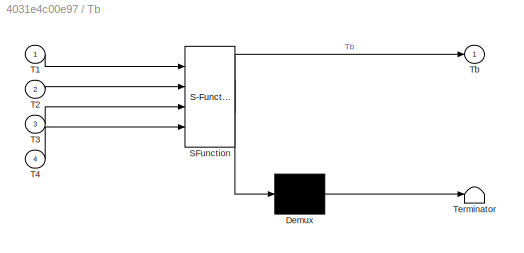
BLOCK [SubSystem] Tb
  ErrorFcn = Stateflow.Translate.translate
  PermitHierarchicalResolution = ExplicitOnly
  Ports = [4, 1]
  RequestExecContextInheritance = off
  SFBlockType = MATLAB Function
  TreatAsAtomicUnit = on
  Variant = off
BLOCK [Demux] Tb/ Demux 
  Outputs = 1
  Ports = [1, 1]
BLOCK [S-Function] Tb/ SFunction 
  EnableBusSupport = on
  FunctionName = sf_sfun
  PortCounts = [4 2]
  Ports = [4, 2]
  SFcnIsStateOwnerBlock = off
  SFunctionDeploymentMode = off
  Tag = Stateflow S-Function UAV_corregido 5
BLOCK [Terminator] Tb/ Terminator 
BLOCK [Inport] Tb/T1
  IconDisplay = Port number
BLOCK [Inport] Tb/T2
  IconDisplay = Port number
  Port = 2
BLOCK [Inport] Tb/T3
  IconDisplay = Port number
  Port = 3
BLOCK [Inport] Tb/T4
  IconDisplay = Port number
  Port = 4
BLOCK [Outport] Tb/Tb
  IconDisplay = Port number
BLOCK [SubSystem] Thetapp
  ErrorFcn = Stateflow.Translate.translate
  PermitHierarchicalResolution = ExplicitOnly
  Ports = [3, 1]
  RequestExecContextInheritance = off
  SFBlockType = MATLAB Function
  TreatAsAtomicUnit = on
  Variant = off
BLOCK [Demux] Thetapp/ Demux 
  Outputs = 1
  Ports = [1, 1]
BLOCK [S-Function] Thetapp/ SFunction 
  EnableBusSupport = on
  FunctionName = sf_sfun
  PortCounts = [3 2]
  Ports = [3, 2]
  SFcnIsStateOwnerBlock = off
  SFunctionDeploymentMode = off
  Tag = Stateflow S-Function UAV_corregido 10
BLOCK [Terminator] Thetapp/ Terminator 
BLOCK [Inport] Thetapp/Phip
  IconDisplay = Port number
BLOCK [Inport] Thetapp/Psip
  IconDisplay = Port number
  Port = 2
BLOCK [Outport] Thetapp/Thetapp
  IconDisplay = Port number
BLOCK [Inport] Thetapp/Ttheta
  IconDisplay = Port number
  Port = 3
BLOCK [SubSystem] Tphi
  ErrorFcn = Stateflow.Translate.translate
  PermitHierarchicalResolution = ExplicitOnly
  Ports = [2, 1]
  RequestExecContextInheritance = off
  SFBlockType = MATLAB Function
  TreatAsAtomicUnit = on
  Variant = off
BLOCK [Demux] Tphi/ Demux 
  Outputs = 1
  Ports = [1, 1]
BLOCK [S-Function] Tphi/ SFunction 
  EnableBusSupport = on
  FunctionName = sf_sfun
  PortCounts = [2 2]
  Ports = [2, 2]
  SFcnIsStateOwnerBlock = off
  SFunctionDeploymentMode = off
  Tag = Stateflow S-Function UAV_corregido 6
BLOCK [Terminator] Tphi/ Terminator 
BLOCK [Inport] Tphi/T3
  IconDisplay = Port number
BLOCK [Inport] Tphi/T4
  IconDisplay = Port number
  Port = 2
BLOCK [Outport] Tphi/Tphi
  IconDisplay = Port number
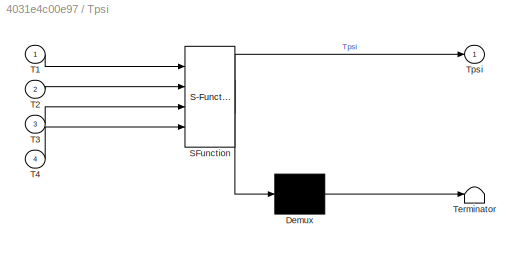
BLOCK [SubSystem] Tpsi
  ErrorFcn = Stateflow.Translate.translate
  PermitHierarchicalResolution = ExplicitOnly
  Ports = [4, 1]
  RequestExecContextInheritance = off
  SFBlockType = MATLAB Function
  TreatAsAtomicUnit = on
  Variant = off
BLOCK [Demux] Tpsi/ Demux 
  Outputs = 1
  Ports = [1, 1]
BLOCK [S-Function] Tpsi/ SFunction 
  EnableBusSupport = on
  FunctionName = sf_sfun
  PortCounts = [4 2]
  Ports = [4, 2]
  SFcnIsStateOwnerBlock = off
  SFunctionDeploymentMode = off
  Tag = Stateflow S-Function UAV_corregido 8
BLOCK [Terminator] Tpsi/ Terminator 
BLOCK [Inport] Tpsi/T1
  IconDisplay = Port number
BLOCK [Inport] Tpsi/T2
  IconDisplay = Port number
  Port = 2
BLOCK [Inport] Tpsi/T3
  IconDisplay = Port number
  Port = 3
BLOCK [Inport] Tpsi/T4
  IconDisplay = Port number
  Port = 4
BLOCK [Outport] Tpsi/Tpsi
  IconDisplay = Port number
BLOCK [SubSystem] Ttheta
  ErrorFcn = Stateflow.Translate.translate
  PermitHierarchicalResolution = ExplicitOnly
  Ports = [2, 1]
  RequestExecContextInheritance = off
  SFBlockType = MATLAB Function
  TreatAsAtomicUnit = on
  Variant = off
BLOCK [Demux] Ttheta/ Demux 
  Outputs = 1
  Ports = [1, 1]
BLOCK [S-Function] Ttheta/ SFunction 
  EnableBusSupport = on
  FunctionName = sf_sfun
  PortCounts = [2 2]
  Ports = [2, 2]
  SFcnIsStateOwnerBlock = off
  SFunctionDeploymentMode = off
  Tag = Stateflow S-Function UAV_corregido 7
BLOCK [Terminator] Ttheta/ Terminator 
BLOCK [Inport] Ttheta/T1
  IconDisplay = Port number
BLOCK [Inport] Ttheta/T2
  IconDisplay = Port number
  Port = 2
BLOCK [Outport] Ttheta/Ttheta
  IconDisplay = Port number
BLOCK [SubSystem] Tx
  ErrorFcn = Stateflow.Translate.translate
  PermitHierarchicalResolution = ExplicitOnly
  Ports = [4, 1]
  RequestExecContextInheritance = off
  SFBlockType = MATLAB Function
  TreatAsAtomicUnit = on
  Variant = off
BLOCK [Demux] Tx/ Demux 
  Outputs = 1
  Ports = [1, 1]
BLOCK [S-Function] Tx/ SFunction 
  EnableBusSupport = on
  FunctionName = sf_sfun
  PortCounts = [4 2]
  Ports = [4, 2]
  SFcnIsStateOwnerBlock = off
  SFunctionDeploymentMode = off
  Tag = Stateflow S-Function UAV_corregido 12
BLOCK [Terminator] Tx/ Terminator 
BLOCK [Inport] Tx/Phi
  IconDisplay = Port number
BLOCK [Inport] Tx/Psi
  IconDisplay = Port number
  Port = 3
BLOCK [Inport] Tx/Tb
  IconDisplay = Port number
  Port = 4
BLOCK [Inport] Tx/Theta
  IconDisplay = Port number
  Port = 2
BLOCK [Outport] Tx/Tx
  IconDisplay = Port number
BLOCK [SubSystem] Ty
  ErrorFcn = Stateflow.Translate.translate
  PermitHierarchicalResolution = ExplicitOnly
  Ports = [3, 1]
  RequestExecContextInheritance = off
  SFBlockType = MATLAB Function
  TreatAsAtomicUnit = on
  Variant = off
BLOCK [Demux] Ty/ Demux 
  Outputs = 1
  Ports = [1, 1]
BLOCK [S-Function] Ty/ SFunction 
  EnableBusSupport = on
  FunctionName = sf_sfun
  PortCounts = [3 2]
  Ports = [3, 2]
  SFcnIsStateOwnerBlock = off
  SFunctionDeploymentMode = off
  Tag = Stateflow S-Function UAV_corregido 13
BLOCK [Terminator] Ty/ Terminator 
BLOCK [Inport] Ty/Psi
  IconDisplay = Port number
  Port = 2
BLOCK [Inport] Ty/Tb
  IconDisplay = Port number
  Port = 3
BLOCK [Inport] Ty/Theta
  IconDisplay = Port number
BLOCK [Outport] Ty/Ty
  IconDisplay = Port number
BLOCK [SubSystem] Tz
  ErrorFcn = Stateflow.Translate.translate
  PermitHierarchicalResolution = ExplicitOnly
  Ports = [3, 1]
  RequestExecContextInheritance = off
  SFBlockType = MATLAB Function
  TreatAsAtomicUnit = on
  Variant = off
BLOCK [Demux] Tz/ Demux 
  Outputs = 1
  Ports = [1, 1]
BLOCK [S-Function] Tz/ SFunction 
  EnableBusSupport = on
  FunctionName = sf_sfun
  PortCounts = [3 2]
  Ports = [3, 2]
  SFcnIsStateOwnerBlock = off
  SFunctionDeploymentMode = off
  Tag = Stateflow S-Function UAV_corregido 14
BLOCK [Terminator] Tz/ Terminator 
BLOCK [Inport] Tz/Phi
  IconDisplay = Port number
BLOCK [Inport] Tz/Psi
  IconDisplay = Port number
  Port = 2
BLOCK [Inport] Tz/Tb
  IconDisplay = Port number
  Port = 3
BLOCK [Outport] Tz/Tz
  IconDisplay = Port number
BLOCK [SubSystem] VOC
  ErrorFcn = Stateflow.Translate.translate
  PermitHierarchicalResolution = ExplicitOnly
  Ports = [1, 1]
  RequestExecContextInheritance = off
  SFBlockType = MATLAB Function
  TreatAsAtomicUnit = on
  Variant = off
BLOCK [Demux] VOC/ Demux 
  Outputs = 1
  Ports = [1, 1]
BLOCK [S-Function] VOC/ SFunction 
  EnableBusSupport = on
  FunctionName = sf_sfun
  PortCounts = [1 2]
  Ports = [1, 2]
  SFcnIsStateOwnerBlock = off
  SFunctionDeploymentMode = off
  Tag = Stateflow S-Function UAV_corregido 21
BLOCK [Terminator] VOC/ Terminator 
BLOCK [Outport] VOC/E
  IconDisplay = Port number
BLOCK [Inport] VOC/u
  IconDisplay = Port number
BLOCK [Concatenate] Vector Concatenate
  NumInputs = 6
  Ports = [6, 1]
BLOCK [SubSystem] Xpp
  ErrorFcn = Stateflow.Translate.translate
  PermitHierarchicalResolution = ExplicitOnly
  Ports = [4, 1]
  RequestExecContextInheritance = off
  SFBlockType = MATLAB Function
  TreatAsAtomicUnit = on
  Variant = off
BLOCK [Demux] Xpp/ Demux 
  Outputs = 1
  Ports = [1, 1]
BLOCK [S-Function] Xpp/ SFunction 
  EnableBusSupport = on
  FunctionName = sf_sfun
  PortCounts = [4 2]
  Ports = [4, 2]
  SFcnIsStateOwnerBlock = off
  SFunctionDeploymentMode = off
  Tag = Stateflow S-Function UAV_corregido 15
BLOCK [Terminator] Xpp/ Terminator 
BLOCK [Inport] Xpp/Phi
  IconDisplay = Port number
  Port = 2
BLOCK [Inport] Xpp/Psi
  IconDisplay = Port number
  Port = 4
BLOCK [Inport] Xpp/Theta
  IconDisplay = Port number
  Port = 3
BLOCK [Inport] Xpp/Tx
  IconDisplay = Port number
BLOCK [Outport] Xpp/Xpp
  IconDisplay = Port number
BLOCK [SubSystem] Ypp
  ErrorFcn = Stateflow.Translate.translate
  PermitHierarchicalResolution = ExplicitOnly
  Ports = [4, 1]
  RequestExecContextInheritance = off
  SFBlockType = MATLAB Function
  TreatAsAtomicUnit = on
  Variant = off
BLOCK [Demux] Ypp/ Demux 
  Outputs = 1
  Ports = [1, 1]
BLOCK [S-Function] Ypp/ SFunction 
  EnableBusSupport = on
  FunctionName = sf_sfun
  PortCounts = [4 2]
  Ports = [4, 2]
  SFcnIsStateOwnerBlock = off
  SFunctionDeploymentMode = off
  Tag = Stateflow S-Function UAV_corregido 16
BLOCK [Terminator] Ypp/ Terminator 
BLOCK [Inport] Ypp/Phi
  IconDisplay = Port number
  Port = 2
BLOCK [Inport] Ypp/Psi
  IconDisplay = Port number
  Port = 4
BLOCK [Inport] Ypp/Theta
  IconDisplay = Port number
  Port = 3
BLOCK [Inport] Ypp/Ty
  IconDisplay = Port number
BLOCK [Outport] Ypp/Ypp
  IconDisplay = Port number
BLOCK [SubSystem] Zpp
  ErrorFcn = Stateflow.Translate.translate
  PermitHierarchicalResolution = ExplicitOnly
  Ports = [3, 1]
  RequestExecContextInheritance = off
  SFBlockType = MATLAB Function
  TreatAsAtomicUnit = on
  Variant = off
BLOCK [Demux] Zpp/ Demux 
  Outputs = 1
  Ports = [1, 1]
BLOCK [S-Function] Zpp/ SFunction 
  EnableBusSupport = on
  FunctionName = sf_sfun
  PortCounts = [3 2]
  Ports = [3, 2]
  SFcnIsStateOwnerBlock = off
  SFunctionDeploymentMode = off
  Tag = Stateflow S-Function UAV_corregido 17
BLOCK [Terminator] Zpp/ Terminator 
BLOCK [Inport] Zpp/Phi
  IconDisplay = Port number
  Port = 2
BLOCK [Inport] Zpp/Theta
  IconDisplay = Port number
  Port = 3
BLOCK [Inport] Zpp/Tz
  IconDisplay = Port number
BLOCK [Outport] Zpp/Zpp
  IconDisplay = Port number
ANNOTATION (root): Parametros Bateria
ANNOTATION (root): Parametros del Motor
ANNOTATION (root): Parametros del UAV
LINE Add:1 -> Gain2:1
NET Cinética:1 -> Display2:1, Energia total UAV:1
NET Corriente motor 1:1 -> Energia consumida motor 1:3, Sum of Elements1:1
NET Corriente motor 2:1 -> Energia consumida motor 2 :3, Sum of Elements1:2
NET Corriente motor 3:1 -> Energia consumida motor 3:3, Sum of Elements1:3
NET Corriente motor 4:1 -> Energia consumida motor 4:3, Sum of Elements1:4
LINE Derivative1:1 -> Energia consumida motor 2 :1
LINE Derivative2:1 -> Energia consumida motor 3:1
LINE Derivative3:1 -> Energia consumida motor 4:1
LINE Derivative:1 -> Energia consumida motor 1:1
LINE Energia consumida motor 1:1 -> Sum of Elements:1
LINE Energia consumida motor 2 :1 -> Sum of Elements:2
LINE Energia consumida motor 3:1 -> Sum of Elements:3
LINE Energia consumida motor 4:1 -> Sum of Elements:4
NET Energia total UAV:1 -> Display3:1, Scope7:1
NET Gain1:1 -> SoC :1, VOC:1
LINE Gain2:1 -> Scope2:1
LINE Gain3:1 -> Add:1
NET Gain:1 -> Gain3:1, Integrator11:1
LINE Inercia (I):1 -> Cinética:2
LINE Integrator10:1 -> Scope1:1
LINE Integrator11:1 -> Gain1:1
LINE Integrator12:1 -> Scope5:1
LINE Integrator13:1 -> Scope9:1
NET Integrator1:1 -> Integrator3:1, Psipp:1, Thetapp:1, Vector Concatenate:1
NET Integrator2:1 -> Integrator5:1, Phipp:2, Thetapp:2, Vector Concatenate:3
NET Integrator3:1 -> Tx:1, Tz:1, Xpp:2, Ypp:2, Zpp:2
NET Integrator4:1 -> Tx:2, Ty:1, Xpp:3, Ypp:3, Zpp:3
NET Integrator5:1 -> Tx:3, Ty:2, Tz:2, Xpp:4, Ypp:4
NET Integrator6:1 -> Integrator10:1, Vector Concatenate:4
NET Integrator7:1 -> Integrator12:1, Vector Concatenate:5
NET Integrator8:1 -> Integrator9:1, Vector Concatenate:6
LINE Integrator9:1 -> Potencial:1
NET Integrator:1 -> Integrator4:1, Phipp:1, Psipp:2, Vector Concatenate:2
NET PID Controller1:1 -> Corriente motor 1:2, Rotor1:1
NET PID Controller2:1 -> Corriente motor 2:2, Rotor2:1
NET PID Controller3:1 -> Corriente motor 3:2, Rotor3:1
NET PID Controller4:1 -> Corriente motor 4:2, Rotor4:1
LINE Phipp:1 -> Integrator1:1
NET Potencial:1 -> Display1:1, Energia total UAV:2
LINE Psipp:1 -> Integrator2:1
NET Rotor1:1 -> Corriente motor 1:1, Derivative:1, Energia consumida motor 1:2, Scope8:2, Sum:2, T1:1
NET Rotor2:1 -> Corriente motor 2:1, Derivative1:1, Energia consumida motor 2 :2, Sum3:2, T2:1
NET Rotor3:1 -> Corriente motor 3:1, Derivative2:1, Energia consumida motor 3:2, Sum4:2, T3:1
NET Rotor4:1 -> Corriente motor 4:1, Derivative3:1, Energia consumida motor 4:2, Sum5:2, T4:1
NET Signal Builder:1 -> Scope8:1, Sum3:1, Sum4:1, Sum5:1, Sum:1
LINE SoC :1 -> Scope3:1
NET Sum of Elements1:1 -> Gain:1, Scope4:1
LINE Sum of Elements:1 -> Integrator13:1
LINE Sum3:1 -> PID Controller2:1
LINE Sum4:1 -> PID Controller3:1
LINE Sum5:1 -> PID Controller4:1
LINE Sum:1 -> PID Controller1:1
NET T1:1 -> Tb:1, Tpsi:1, Ttheta:1
NET T2:1 -> Tb:2, Tpsi:2, Ttheta:2
NET T3:1 -> Tb:3, Tphi:1, Tpsi:3
NET T4:1 -> Tb:4, Tphi:2, Tpsi:4
NET Tb:1 -> Tx:4, Ty:3, Tz:3
LINE Thetapp:1 -> Integrator:1
LINE Tphi:1 -> Phipp:3
LINE Tpsi:1 -> Psipp:3
LINE Ttheta:1 -> Thetapp:3
LINE Tx:1 -> Xpp:1
LINE Ty:1 -> Ypp:1
LINE Tz:1 -> Zpp:1
LINE VOC:1 -> Add:2
LINE Vector Concatenate:1 -> Cinética:1
LINE Xpp:1 -> Integrator6:1
LINE Ypp:1 -> Integrator7:1
LINE Zpp:1 -> Integrator8:1
note: NET lines group one-source signal fan-out (src -> all destinations, sorted); 1:1 wires keep LINE
CHART T2 states=1 transitions=1
  STATE_LABEL 'eML_blk_kernel()'
  STATE_LABEL 'SCRIPT:\nfunction T2 = fcn(W2)\nglobal P_airs;\nglobal C_ls;\nglobal C_ds;\nglobal As;\nT2 = (1/2)*P_airs*(W2^2)*As*(C_ls+C_ds);\n'
CHART T1 states=1 transitions=1
  STATE_LABEL 'eML_blk_kernel()'
  STATE_LABEL 'SCRIPT:\nfunction T1 = fcn(W1)\nglobal P_airs;\nglobal C_ls;\nglobal C_ds;\nglobal As;\nT1 = (1/2)*P_airs*(W1^2)*As*(C_ls+C_ds);\n'
CHART T4 states=1 transitions=1
  STATE_LABEL 'eML_blk_kernel()'
  STATE_LABEL 'SCRIPT:\nfunction T4 = fcn(W4)\nglobal P_airs;\nglobal C_ls;\nglobal C_ds;\nglobal As;\nT4 = (1/2)*P_airs*(W4^2)*As*(C_ls+C_ds);\n'
CHART T3 states=1 transitions=1
  STATE_LABEL 'eML_blk_kernel()'
  STATE_LABEL 'SCRIPT:\nfunction T3 = fcn(W3)\nglobal P_airs;\nglobal C_ls;\nglobal C_ds;\nglobal As;\nT3 = (1/2)*P_airs*(W3^2)*As*(C_ls+C_ds);'
CHART Tb states=1 transitions=1
  STATE_LABEL 'eML_blk_kernel()'
  STATE_LABEL 'SCRIPT:\nfunction Tb = fcn(T1,T2,T3,T4)\n\nTb = (T1+T2+T3+T4);\n'
CHART Tphi states=1 transitions=1
  STATE_LABEL 'eML_blk_kernel()'
  STATE_LABEL 'SCRIPT:\nfunction Tphi = fcn(T3,T4)\n\nTphi = 0.15*(T4-T3);\n'
CHART Ttheta states=1 transitions=1
  STATE_LABEL 'eML_blk_kernel()'
  STATE_LABEL 'SCRIPT:\nfunction Ttheta = fcn(T1,T2)\n\nTtheta = 0.15*(T1-T2);\n'
CHART Tpsi states=1 transitions=1
  STATE_LABEL 'eML_blk_kernel()'
  STATE_LABEL 'SCRIPT:\nfunction Tpsi = fcn(T1,T2,T3,T4)\n\nTpsi = 0.15*(T3+T4-T1-T2);\n'
CHART Phipp states=1 transitions=1
  STATE_LABEL 'eML_blk_kernel()'
  STATE_LABEL 'SCRIPT:\nfunction Phipp = fcn(Thetap,Psip,Tphi)\nglobal Jcm_xs;\nglobal Jcm_ys;\nglobal Jcm_zs;\nPhipp = ((((Jcm_ys)-(Jcm_zs))/(Jcm_xs))*Thetap*Psip)+((1/(Jcm_xs))*Tphi);\n'
CHART Thetapp states=1 transitions=1
  STATE_LABEL 'eML_blk_kernel()'
  STATE_LABEL 'SCRIPT:\nfunction Thetapp = fcn(Phip,Psip,Ttheta)\nglobal Jcm_xs;\nglobal Jcm_ys;\nglobal Jcm_zs;\nThetapp = ((((Jcm_ys)-(Jcm_zs))/(Jcm_xs))*Phip*Psip)+((1/(Jcm_ys))*Ttheta);\n'
CHART Psipp states=1 transitions=1
  STATE_LABEL 'eML_blk_kernel()'
  STATE_LABEL 'SCRIPT:\nfunction Psipp = fcn(Phip,Thetap,Tpsi)\nglobal Jcm_xs;\nglobal Jcm_ys;\nglobal Jcm_zs;\nPsipp = ((((Jcm_xs)-(Jcm_ys))/(Jcm_zs))*Phip*Thetap)+((1/(Jcm_zs))*Tpsi);\n'
CHART Tx states=1 transitions=1
  STATE_LABEL 'eML_blk_kernel()'
  STATE_LABEL 'SCRIPT:\nfunction Tx = fcn(Phi,Theta,Psi,Tb)\n\nTx = ((sin(Psi)*sin(Theta))+(cos(Psi)*sin(Theta)*cos(Phi)))*Tb;\n'
CHART Ty states=1 transitions=1
  STATE_LABEL 'eML_blk_kernel()'
  STATE_LABEL 'SCRIPT:\nfunction Ty = fcn(Theta,Psi,Tb)\n\nTy = ((-cos(Psi)*sin(Theta))+(sin(Psi)*sin(Theta)*cos(Theta)))*Tb;\n'
CHART Tz states=1 transitions=1
  STATE_LABEL 'eML_blk_kernel()'
  STATE_LABEL 'SCRIPT:\nfunction Tz = fcn(Phi,Psi,Tb)\n\nTz = ((-cos(Psi)*cos(Phi)))*Tb;\n'
CHART Xpp states=1 transitions=1
  STATE_LABEL 'eML_blk_kernel()'
  STATE_LABEL 'SCRIPT:\nfunction Xpp = fcn(Tx,Phi,Theta,Psi)\nglobal M_ts;\nXpp = Tx*(((cos(Phi)*sin(Theta)*cos(Psi))+(sin(Phi)+sin(Psi)))/M_ts);\n'
CHART Ypp states=1 transitions=1
  STATE_LABEL 'eML_blk_kernel()'
  STATE_LABEL 'SCRIPT:\nfunction Ypp = fcn(Ty,Phi,Theta,Psi)\nglobal M_ts;\nYpp = Ty*(((cos(Phi)*sin(Theta)*cos(Psi))-(sin(Phi)+cos(Psi)))/M_ts);\n'
CHART Zpp states=1 transitions=1
  STATE_LABEL 'eML_blk_kernel()'
  STATE_LABEL 'SCRIPT:\nfunction Zpp = fcn(Tz,Phi,Theta)\nglobal M_ts;\nglobal gs;\nZpp = Tz*(((cos(Phi)*cos(Theta))-(gs))/M_ts);\n'
CHART Cinética states=1 transitions=1
  STATE_LABEL 'eML_blk_kernel()'
  STATE_LABEL 'SCRIPT:\nfunction K = fcn(V,I)\nV_trans=transpose(V);\nK = (1/2)*V_trans*I*V;\n'
CHART Potencial states=1 transitions=1
  STATE_LABEL 'eML_blk_kernel()'
  STATE_LABEL 'SCRIPT:\nfunction Pot = fcn(Z)\nP = 0.6*9.81*Z;\nPot=abs(P)'
CHART Energia total UAV states=1 transitions=1
  STATE_LABEL 'eML_blk_kernel()'
  STATE_LABEL 'SCRIPT:\nfunction E_total_UAV = fcn(K,Pot)\n\nE_total_UAV = K+Pot;\n'
CHART VOC states=1 transitions=1
  STATE_LABEL 'eML_blk_kernel()'
  STATE_LABEL 'SCRIPT:\nfunction E = fcn(u)\nglobal E0s;\nglobal Ks;\nglobal Abs;\nglobal Qs;\nglobal Bs;\n\nE=E0s-Ks*(Qs/(Qs-u(1)))+Abs*exp(-Bs*u(1));\n'
CHART SoC
 states=1 transitions=1
  STATE_LABEL 'eML_blk_kernel()'
  STATE_LABEL 'SCRIPT:\nfunction SoC = fcn(u)\nglobal Qs; %Amperios hora\n%SoC = 100*(1-(u/Qs));\nSoC = 100*(1-(u/Qs));\n'
CHART Corriente motor 1 states=1 transitions=1
  STATE_LABEL 'eML_blk_kernel()'
  STATE_LABEL 'SCRIPT:\nfunction I1 = fcn(W1, V1)\nglobal Rs;\nglobal Kvs;\nCOR1=(V1-(W1/Kvs))/Rs;\nI1=abs(COR1)\n'
CHART Corriente motor 2 states=1 transitions=1
  STATE_LABEL 'eML_blk_kernel()'
  STATE_LABEL 'SCRIPT:\nfunction I2 = fcn(W2, V2)\nglobal Rs;\nglobal Kvs;\nCOR2=(V2-(W2/Kvs))/Rs;\nI2=abs(COR2)\n'
CHART Corriente motor 3 states=1 transitions=1
  STATE_LABEL 'eML_blk_kernel()'
  STATE_LABEL 'SCRIPT:\nfunction I3 = fcn(W3, V3)\nglobal Rs;\nglobal Kvs;\nCOR3=(V3-(W3/Kvs))/Rs;\nI3=abs(COR3)\n'
CHART Corriente motor 4 states=1 transitions=1
  STATE_LABEL 'eML_blk_kernel()'
  STATE_LABEL 'SCRIPT:\nfunction I4 = fcn(W4, V4)\nglobal Rs;\nglobal Kvs;\nCOR4=(V4-(W4/Kvs))/Rs;\nI4=abs(COR4)\n'
CHART Energia consumida motor 1 states=1 transitions=1
  STATE_LABEL 'eML_blk_kernel()'
  STATE_LABEL 'SCRIPT:\nfunction energia_con1 = fcn(dev_W1, W1, I1)\nglobal Js;\nglobal Dvs;\nglobal Kts;\nglobal C_ds;\nglobal a1s;\nglobal a2s;\nglobal a3s;\nglobal a4s;\nglobal b1s;\nglobal b2s;\nglobal b3s;\nglobal b4s;\nglobal c1s;\nglobal c2s;\nglobal c3s;\nglobal c4s;\n\na=(a1s*(W1^2))+(b1s*W1)+c1s;\nb=(a2s*(W1^2))+(b2s*W1)+c2s;\nc=(a3s*(W1^2))+(b3s*W1)+c3s;\nd=(a4s*(W1^2))+(b4s*W1)+c4s;\n\nTor=I1*Kts;\nfr=(a*(Tor^3))+(b*(Tor^2))...<+71ch>'
CHART Energia consumida motor 2
 states=1 transitions=1
  STATE_LABEL 'eML_blk_kernel()'
  STATE_LABEL 'SCRIPT:\nfunction energia_con2 = fcn(dev_W2, W2, I2)\nglobal Js;\nglobal Dvs;\nglobal Kts;\nglobal C_ds;\nglobal a1s;\nglobal a2s;\nglobal a3s;\nglobal a4s;\nglobal b1s;\nglobal b2s;\nglobal b3s;\nglobal b4s;\nglobal c1s;\nglobal c2s;\nglobal c3s;\nglobal c4s;\n\na=(a1s*(W2^2))+(b1s*W2)+c1s;\nb=(a2s*(W2^2))+(b2s*W2)+c2s;\nc=(a3s*(W2^2))+(b3s*W2)+c3s;\nd=(a4s*(W2^2))+(b4s*W2)+c4s;\n\nTor=I2*Kts;\nfr=(a*Tor^3)+(b*Tor^2)+(c*...<+67ch>'
CHART Energia consumida motor 3 states=1 transitions=1
  STATE_LABEL 'eML_blk_kernel()'
  STATE_LABEL 'SCRIPT:\nfunction energia_con3 = fcn(dev_W3, W3, I3)\nglobal Js;\nglobal Dvs;\nglobal Kts;\nglobal C_ds;\nglobal a1s;\nglobal a2s;\nglobal a3s;\nglobal a4s;\nglobal b1s;\nglobal b2s;\nglobal b3s;\nglobal b4s;\nglobal c1s;\nglobal c2s;\nglobal c3s;\nglobal c4s;\n\na=(a1s*(W3^2))+(b1s*W3)+c1s;\nb=(a2s*(W3^2))+(b2s*W3)+c2s;\nc=(a3s*(W3^2))+(b3s*W3)+c3s;\nd=(a4s*(W3^2))+(b4s*W3)+c4s;\n\nTor=I3*Kts;\nfr=(a*Tor^3)+(b*Tor^2)+(c*...<+68ch>'
CHART Energia consumida motor 4 states=1 transitions=1
  STATE_LABEL 'eML_blk_kernel()'
  STATE_LABEL 'SCRIPT:\nfunction energia_con4 = fcn(dev_W4, W4, I4)\nglobal Js;\nglobal Dvs;\nglobal Kts;\nglobal C_ds;\nglobal a1s;\nglobal a2s;\nglobal a3s;\nglobal a4s;\nglobal b1s;\nglobal b2s;\nglobal b3s;\nglobal b4s;\nglobal c1s;\nglobal c2s;\nglobal c3s;\nglobal c4s;\n\na=(a1s*(W4^2))+(b1s*W4)+c1s;\nb=(a2s*(W4^2))+(b2s*W4)+c2s;\nc=(a3s*(W4^2))+(b3s*W4)+c3s;\nd=(a4s*(W4^2))+(b4s*W4)+c4s;\n\nTor=I4*Kts;\nfr=(a*Tor^3)+(b*Tor^2)+(c*...<+67ch>'
